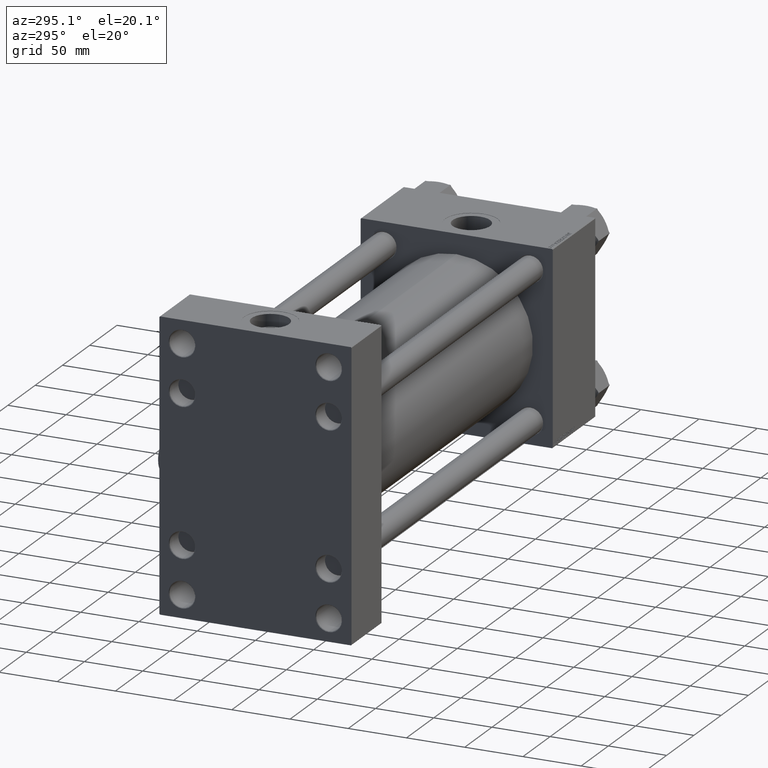
[diagram: clean part render]
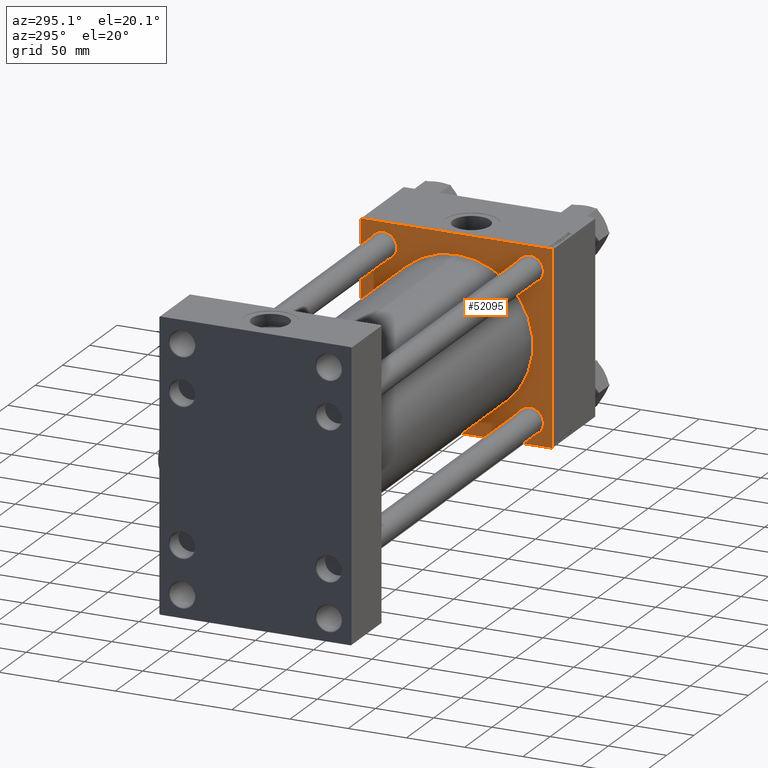
[diagram: same view with one face highlighted and labeled with its STEP entity id]
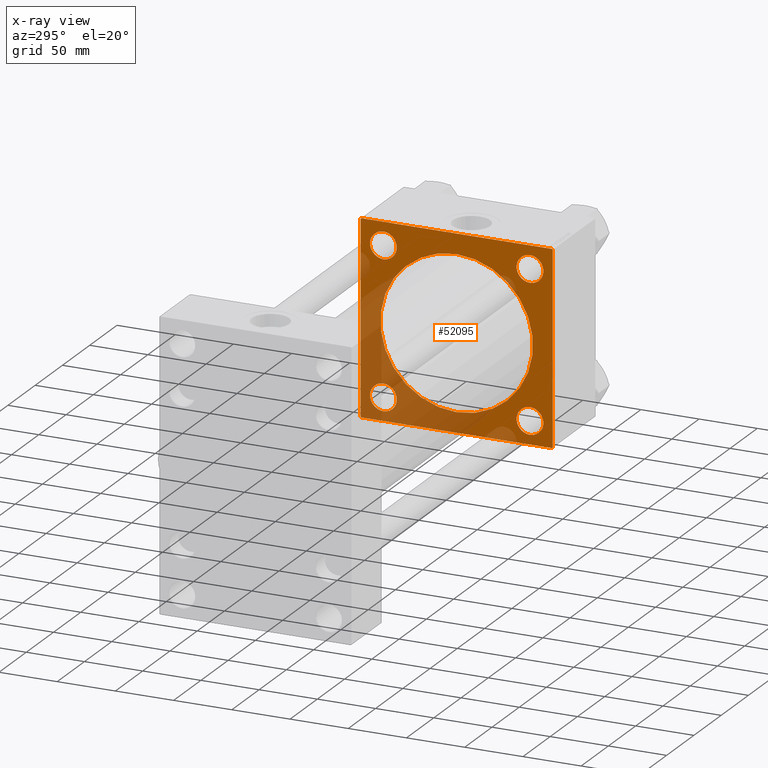
[diagram: x-ray of the same camera — body ghosted, the highlighted face saturated]
A machine part, auxiliary view. The second image highlights one B-rep face of the part: STEP entity #52095.
The next image is the same camera in x-ray: the body ghosted, the highlighted face saturated — about 35% of this face is hidden behind the body in this view.
In plain terms, the highlighted planar face has unit normal (-1, 0, 0).
Its self-contained STEP definition (entity closure, byte-faithful):
#139 = ORIENTED_EDGE ( 'NONE', *, *, #6857, .T. ) ;
#785 = ORIENTED_EDGE ( 'NONE', *, *, #18762, .T. ) ;
#1022 = LINE ( 'NONE', #26058, #40314 ) ;
#1704 = CARTESIAN_POINT ( 'NONE',  ( 369.0000000000000000, 82.50000000000001421, 82.00000000000000000 ) ) ;
#2761 = EDGE_CURVE ( 'NONE', #12055, #24244, #2910, .T. ) ;
#2891 = CIRCLE ( 'NONE', #42818, 11.50000000000012079 ) ;
#2910 = CIRCLE ( 'NONE', #10548, 65.50000000000001421 ) ;
#2987 = DIRECTION ( 'NONE',  ( 0.000000000000000000, -1.000000000000000000, -1.682156097916904081E-16 ) ) ;
#3023 = EDGE_CURVE ( 'NONE', #42854, #43564, #1022, .T. ) ;
#3128 = EDGE_CURVE ( 'NONE', #28758, #28450, #17356, .T. ) ;
#3266 = CIRCLE ( 'NONE', #33045, 11.50000000000001066 ) ;
#3294 = CARTESIAN_POINT ( 'NONE',  ( 369.0000000000000000, -2.602085213965210642E-15, 0.000000000000000000 ) ) ;
#3648 = CARTESIAN_POINT ( 'NONE',  ( 369.0000000000000000, -62.94999999999998153, 51.45000000000000995 ) ) ;
#3838 = VECTOR ( 'NONE', #35573, 1000.000000000000000 ) ;
#4281 = VERTEX_POINT ( 'NONE', #30519 ) ;
#4418 = CARTESIAN_POINT ( 'NONE',  ( 369.0000000000000000, 62.95000000000000284, -62.95000000000000284 ) ) ;
#4609 = ORIENTED_EDGE ( 'NONE', *, *, #3023, .T. ) ;
#4747 = ORIENTED_EDGE ( 'NONE', *, *, #12761, .T. ) ;
#5194 = VERTEX_POINT ( 'NONE', #14960 ) ;
#6653 = VERTEX_POINT ( 'NONE', #13147 ) ;
#6857 = EDGE_CURVE ( 'NONE', #34586, #30713, #41923, .T. ) ;
#7152 = ORIENTED_EDGE ( 'NONE', *, *, #29743, .T. ) ;
#7293 = CARTESIAN_POINT ( 'NONE',  ( 369.0000000000000000, -62.94999999999998153, -62.95000000000001705 ) ) ;
#7308 = DIRECTION ( 'NONE',  ( -0.000000000000000000, -0.7071067811865081598, -0.7071067811865867636 ) ) ;
#7447 = CARTESIAN_POINT ( 'NONE',  ( 369.0000000000000000, -82.50000000000000000, -82.00000000000008527 ) ) ;
#7743 = DIRECTION ( 'NONE',  ( 0.000000000000000000, -0.7071067811865573427, 0.7071067811865376918 ) ) ;
#8704 = DIRECTION ( 'NONE',  ( 0.000000000000000000, 0.000000000000000000, 1.000000000000000000 ) ) ;
#8706 = CARTESIAN_POINT ( 'NONE',  ( 369.0000000000000000, 62.95000000000000284, -62.95000000000000284 ) ) ;
#8970 = DIRECTION ( 'NONE',  ( 1.000000000000000000, 0.000000000000000000, -0.000000000000000000 ) ) ;
#9118 = EDGE_LOOP ( 'NONE', ( #30150, #42607 ) ) ;
#9129 = ORIENTED_EDGE ( 'NONE', *, *, #23387, .T. ) ;
#9524 = DIRECTION ( 'NONE',  ( 0.000000000000000000, -1.000000000000000000, 0.000000000000000000 ) ) ;
#9857 = CARTESIAN_POINT ( 'NONE',  ( 369.0000000000000000, -62.94999999999998153, 74.45000000000003126 ) ) ;
#10175 = ORIENTED_EDGE ( 'NONE', *, *, #52648, .F. ) ;
#10548 = AXIS2_PLACEMENT_3D ( 'NONE', #18363, #18101, #41104 ) ;
#10688 = CIRCLE ( 'NONE', #48915, 11.50000000000012079 ) ;
#11324 = ORIENTED_EDGE ( 'NONE', *, *, #12212, .T. ) ;
#11491 = CARTESIAN_POINT ( 'NONE',  ( 369.0000000000000000, 62.95000000000000284, -51.44999999999988205 ) ) ;
#11741 = LINE ( 'NONE', #36488, #22948 ) ;
#11833 = DIRECTION ( 'NONE',  ( 0.000000000000000000, 0.000000000000000000, 1.000000000000000000 ) ) ;
#11977 = CARTESIAN_POINT ( 'NONE',  ( 369.0000000000000000, 62.95000000000000284, 51.44999999999988205 ) ) ;
#12014 = EDGE_CURVE ( 'NONE', #32583, #21156, #2891, .T. ) ;
#12055 = VERTEX_POINT ( 'NONE', #33424 ) ;
#12061 = CARTESIAN_POINT ( 'NONE',  ( 369.0000000000000000, 81.99999999999995737, 82.50000000000000000 ) ) ;
#12212 = EDGE_CURVE ( 'NONE', #24244, #12055, #36080, .T. ) ;
#12248 = AXIS2_PLACEMENT_3D ( 'NONE', #3294, #39240, #39506 ) ;
#12307 = CARTESIAN_POINT ( 'NONE',  ( 369.0000000000000000, -62.94999999999998153, 62.95000000000001705 ) ) ;
#12602 = FACE_BOUND ( 'NONE', #41507, .T. ) ;
#12761 = EDGE_CURVE ( 'NONE', #5194, #29849, #45207, .T. ) ;
#12959 = CARTESIAN_POINT ( 'NONE',  ( 369.0000000000000000, -62.94999999999998153, -62.95000000000001705 ) ) ;
#13044 = CARTESIAN_POINT ( 'NONE',  ( 369.0000000000000000, -82.24999999999877787, 82.25000000000106581 ) ) ;
#13147 = CARTESIAN_POINT ( 'NONE',  ( 369.0000000000000000, -82.49999999999997158, 81.99999999999985789 ) ) ;
#14023 = DIRECTION ( 'NONE',  ( 0.000000000000000000, 0.000000000000000000, 1.000000000000000000 ) ) ;
#14321 = VECTOR ( 'NONE', #2987, 1000.000000000000000 ) ;
#14423 = VECTOR ( 'NONE', #36756, 999.9999999999998863 ) ;
#14809 = CARTESIAN_POINT ( 'NONE',  ( 369.0000000000000000, 62.95000000000000284, 62.95000000000000284 ) ) ;
#14906 = EDGE_CURVE ( 'NONE', #31488, #4281, #20879, .T. ) ;
#14960 = CARTESIAN_POINT ( 'NONE',  ( 369.0000000000000000, 82.00000000000001421, -82.50000000000002842 ) ) ;
#15769 = EDGE_CURVE ( 'NONE', #4281, #31488, #10688, .T. ) ;
#16131 = CARTESIAN_POINT ( 'NONE',  ( 369.0000000000000000, -82.49999999999997158, 82.49999999999997158 ) ) ;
#16322 = DIRECTION ( 'NONE',  ( 0.000000000000000000, 0.000000000000000000, 1.000000000000000000 ) ) ;
#16429 = AXIS2_PLACEMENT_3D ( 'NONE', #12307, #24292, #23763 ) ;
#16732 = CARTESIAN_POINT ( 'NONE',  ( 369.0000000000000000, 82.50000000000001421, -82.50000000000002842 ) ) ;
#17039 = LINE ( 'NONE', #13044, #14423 ) ;
#17356 = CIRCLE ( 'NONE', #52183, 11.50000000000012079 ) ;
#18101 = DIRECTION ( 'NONE',  ( 1.000000000000000000, 0.000000000000000000, 0.000000000000000000 ) ) ;
#18198 = ORIENTED_EDGE ( 'NONE', *, *, #12014, .T. ) ;
#18278 = DIRECTION ( 'NONE',  ( 0.000000000000000000, 0.000000000000000000, 1.000000000000000000 ) ) ;
#18363 = CARTESIAN_POINT ( 'NONE',  ( 369.0000000000000000, -2.602085213965210642E-15, 0.000000000000000000 ) ) ;
#18762 = EDGE_CURVE ( 'NONE', #43564, #45559, #32332, .T. ) ;
#18989 = VERTEX_POINT ( 'NONE', #7447 ) ;
#19331 = LINE ( 'NONE', #16131, #3838 ) ;
#19716 = EDGE_LOOP ( 'NONE', ( #25136, #51716 ) ) ;
#19939 = CIRCLE ( 'NONE', #49691, 11.50000000000012079 ) ;
#20150 = VECTOR ( 'NONE', #36332, 1000.000000000000000 ) ;
#20879 = CIRCLE ( 'NONE', #49781, 11.50000000000012079 ) ;
#21156 = VERTEX_POINT ( 'NONE', #41081 ) ;
#21712 = CARTESIAN_POINT ( 'NONE',  ( 369.0000000000000000, -81.99999999999985789, 82.49999999999997158 ) ) ;
#22948 = VECTOR ( 'NONE', #7743, 1000.000000000000114 ) ;
#23118 = VERTEX_POINT ( 'NONE', #21712 ) ;
#23220 = CARTESIAN_POINT ( 'NONE',  ( 369.0000000000000000, 82.50000000000001421, 82.50000000000000000 ) ) ;
#23387 = EDGE_CURVE ( 'NONE', #30713, #34586, #3266, .T. ) ;
#23577 = EDGE_CURVE ( 'NONE', #42854, #23118, #34927, .T. ) ;
#23763 = DIRECTION ( 'NONE',  ( 0.000000000000000000, 0.000000000000000000, 1.000000000000000000 ) ) ;
#24244 = VERTEX_POINT ( 'NONE', #28530 ) ;
#24292 = DIRECTION ( 'NONE',  ( 1.000000000000000000, 0.000000000000000000, -0.000000000000000000 ) ) ;
#24856 = FACE_OUTER_BOUND ( 'NONE', #26661, .T. ) ;
#25136 = ORIENTED_EDGE ( 'NONE', *, *, #15769, .T. ) ;
#26058 = CARTESIAN_POINT ( 'NONE',  ( 369.0000000000000000, 82.24999999999542410, 82.25000000000456168 ) ) ;
#26532 = DIRECTION ( 'NONE',  ( 1.000000000000000000, 0.000000000000000000, -0.000000000000000000 ) ) ;
#26661 = EDGE_LOOP ( 'NONE', ( #4747, #48443, #10175, #7152, #31771, #4609, #785, #44985 ) ) ;
#28320 = FACE_BOUND ( 'NONE', #19716, .T. ) ;
#28450 = VERTEX_POINT ( 'NONE', #43203 ) ;
#28530 = CARTESIAN_POINT ( 'NONE',  ( 369.0000000000000000, -2.602085213965210642E-15, 65.50000000000001421 ) ) ;
#28596 = FACE_BOUND ( 'NONE', #52679, .T. ) ;
#28614 = LINE ( 'NONE', #44829, #42519 ) ;
#28758 = VERTEX_POINT ( 'NONE', #51365 ) ;
#28850 = PLANE ( 'NONE',  #34384 ) ;
#28922 = DIRECTION ( 'NONE',  ( 1.000000000000000000, 0.000000000000000000, -0.000000000000000000 ) ) ;
#29743 = EDGE_CURVE ( 'NONE', #6653, #23118, #17039, .T. ) ;
#29849 = VERTEX_POINT ( 'NONE', #39006 ) ;
#30150 = ORIENTED_EDGE ( 'NONE', *, *, #3128, .T. ) ;
#30519 = CARTESIAN_POINT ( 'NONE',  ( 369.0000000000000000, 62.95000000000000284, 74.45000000000013074 ) ) ;
#30713 = VERTEX_POINT ( 'NONE', #3648 ) ;
#31063 = DIRECTION ( 'NONE',  ( 1.000000000000000000, 0.000000000000000000, -0.000000000000000000 ) ) ;
#31411 = DIRECTION ( 'NONE',  ( 0.000000000000000000, 0.000000000000000000, 1.000000000000000000 ) ) ;
#31488 = VERTEX_POINT ( 'NONE', #11977 ) ;
#31771 = ORIENTED_EDGE ( 'NONE', *, *, #23577, .F. ) ;
#32332 = LINE ( 'NONE', #45092, #20150 ) ;
#32583 = VERTEX_POINT ( 'NONE', #11491 ) ;
#33045 = AXIS2_PLACEMENT_3D ( 'NONE', #40841, #37373, #11833 ) ;
#33424 = CARTESIAN_POINT ( 'NONE',  ( 369.0000000000000000, 5.419351320449954973E-15, -65.50000000000001421 ) ) ;
#33911 = EDGE_LOOP ( 'NONE', ( #11324, #34964 ) ) ;
#34384 = AXIS2_PLACEMENT_3D ( 'NONE', #37352, #49062, #16322 ) ;
#34515 = EDGE_CURVE ( 'NONE', #45559, #5194, #28614, .T. ) ;
#34521 = CARTESIAN_POINT ( 'NONE',  ( 369.0000000000000000, 62.95000000000000284, 62.95000000000000284 ) ) ;
#34586 = VERTEX_POINT ( 'NONE', #9857 ) ;
#34927 = LINE ( 'NONE', #23220, #14321 ) ;
#34964 = ORIENTED_EDGE ( 'NONE', *, *, #2761, .T. ) ;
#35507 = DIRECTION ( 'NONE',  ( 0.000000000000000000, 0.000000000000000000, 1.000000000000000000 ) ) ;
#35573 = DIRECTION ( 'NONE',  ( 0.000000000000000000, -1.682156097916903834E-16, -1.000000000000000000 ) ) ;
#36080 = CIRCLE ( 'NONE', #12248, 65.50000000000001421 ) ;
#36332 = DIRECTION ( 'NONE',  ( 0.000000000000000000, 0.000000000000000000, -1.000000000000000000 ) ) ;
#36488 = CARTESIAN_POINT ( 'NONE',  ( 369.0000000000000000, -82.24999999999890576, -82.25000000000117950 ) ) ;
#36695 = CIRCLE ( 'NONE', #46022, 11.50000000000012079 ) ;
#36756 = DIRECTION ( 'NONE',  ( -0.000000000000000000, 0.7071067811865574537, 0.7071067811865376918 ) ) ;
#36926 = VECTOR ( 'NONE', #9524, 1000.000000000000000 ) ;
#37352 = CARTESIAN_POINT ( 'NONE',  ( 369.0000000000000000, 0.000000000000000000, 0.000000000000000000 ) ) ;
#37373 = DIRECTION ( 'NONE',  ( 1.000000000000000000, 0.000000000000000000, -0.000000000000000000 ) ) ;
#37530 = EDGE_CURVE ( 'NONE', #29849, #18989, #11741, .T. ) ;
#37958 = EDGE_CURVE ( 'NONE', #28450, #28758, #36695, .T. ) ;
#39006 = CARTESIAN_POINT ( 'NONE',  ( 369.0000000000000000, -82.00000000000004263, -82.50000000000002842 ) ) ;
#39240 = DIRECTION ( 'NONE',  ( 1.000000000000000000, 0.000000000000000000, 0.000000000000000000 ) ) ;
#39506 = DIRECTION ( 'NONE',  ( 0.000000000000000000, 0.000000000000000000, -1.000000000000000000 ) ) ;
#40314 = VECTOR ( 'NONE', #41755, 1000.000000000000000 ) ;
#40658 = DIRECTION ( 'NONE',  ( 1.000000000000000000, 0.000000000000000000, -0.000000000000000000 ) ) ;
#40841 = CARTESIAN_POINT ( 'NONE',  ( 369.0000000000000000, -62.94999999999998153, 62.95000000000001705 ) ) ;
#41081 = CARTESIAN_POINT ( 'NONE',  ( 369.0000000000000000, 62.95000000000000284, -74.45000000000013074 ) ) ;
#41104 = DIRECTION ( 'NONE',  ( 0.000000000000000000, 0.000000000000000000, -1.000000000000000000 ) ) ;
#41261 = ORIENTED_EDGE ( 'NONE', *, *, #51719, .T. ) ;
#41507 = EDGE_LOOP ( 'NONE', ( #139, #9129 ) ) ;
#41755 = DIRECTION ( 'NONE',  ( 0.000000000000000000, 0.7071067811865867636, -0.7071067811865081598 ) ) ;
#41923 = CIRCLE ( 'NONE', #16429, 11.50000000000001066 ) ;
#42519 = VECTOR ( 'NONE', #7308, 1000.000000000000000 ) ;
#42607 = ORIENTED_EDGE ( 'NONE', *, *, #37958, .T. ) ;
#42818 = AXIS2_PLACEMENT_3D ( 'NONE', #4418, #28922, #49132 ) ;
#42854 = VERTEX_POINT ( 'NONE', #12061 ) ;
#43203 = CARTESIAN_POINT ( 'NONE',  ( 369.0000000000000000, -62.94999999999998153, -74.45000000000014495 ) ) ;
#43227 = DIRECTION ( 'NONE',  ( 1.000000000000000000, 0.000000000000000000, -0.000000000000000000 ) ) ;
#43564 = VERTEX_POINT ( 'NONE', #1704 ) ;
#44536 = FACE_BOUND ( 'NONE', #9118, .T. ) ;
#44829 = CARTESIAN_POINT ( 'NONE',  ( 369.0000000000000000, 82.25000000000459011, -82.24999999999545253 ) ) ;
#44985 = ORIENTED_EDGE ( 'NONE', *, *, #34515, .T. ) ;
#45092 = CARTESIAN_POINT ( 'NONE',  ( 369.0000000000000000, 82.50000000000001421, 82.50000000000000000 ) ) ;
#45207 = LINE ( 'NONE', #16732, #36926 ) ;
#45559 = VERTEX_POINT ( 'NONE', #50966 ) ;
#46022 = AXIS2_PLACEMENT_3D ( 'NONE', #7293, #43227, #35507 ) ;
#48443 = ORIENTED_EDGE ( 'NONE', *, *, #37530, .T. ) ;
#48915 = AXIS2_PLACEMENT_3D ( 'NONE', #14809, #31063, #18278 ) ;
#49062 = DIRECTION ( 'NONE',  ( -1.000000000000000000, -0.000000000000000000, 0.000000000000000000 ) ) ;
#49132 = DIRECTION ( 'NONE',  ( 0.000000000000000000, 0.000000000000000000, 1.000000000000000000 ) ) ;
#49572 = FACE_BOUND ( 'NONE', #33911, .T. ) ;
#49691 = AXIS2_PLACEMENT_3D ( 'NONE', #8706, #8970, #31411 ) ;
#49781 = AXIS2_PLACEMENT_3D ( 'NONE', #34521, #26532, #14023 ) ;
#50966 = CARTESIAN_POINT ( 'NONE',  ( 369.0000000000000000, 82.50000000000001421, -81.99999999999997158 ) ) ;
#51365 = CARTESIAN_POINT ( 'NONE',  ( 369.0000000000000000, -62.94999999999998153, -51.44999999999989626 ) ) ;
#51716 = ORIENTED_EDGE ( 'NONE', *, *, #14906, .T. ) ;
#51719 = EDGE_CURVE ( 'NONE', #21156, #32583, #19939, .T. ) ;
#52095 = ADVANCED_FACE ( 'NONE', ( #12602, #28320, #28596, #44536, #49572, #24856 ), #28850, .T. ) ;
#52183 = AXIS2_PLACEMENT_3D ( 'NONE', #12959, #40658, #8704 ) ;
#52648 = EDGE_CURVE ( 'NONE', #6653, #18989, #19331, .T. ) ;
#52679 = EDGE_LOOP ( 'NONE', ( #18198, #41261 ) ) ;